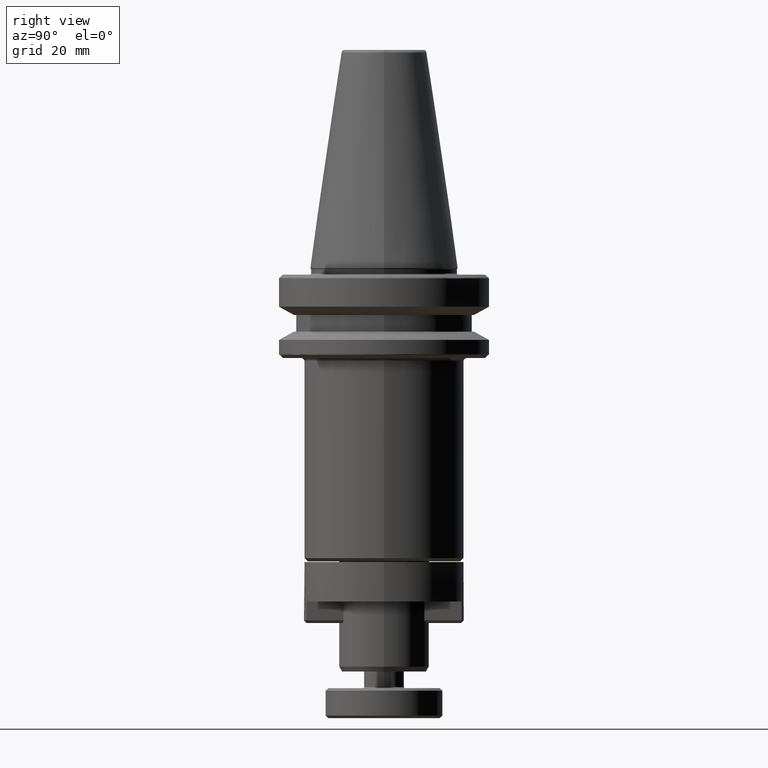
[diagram: clean part render]
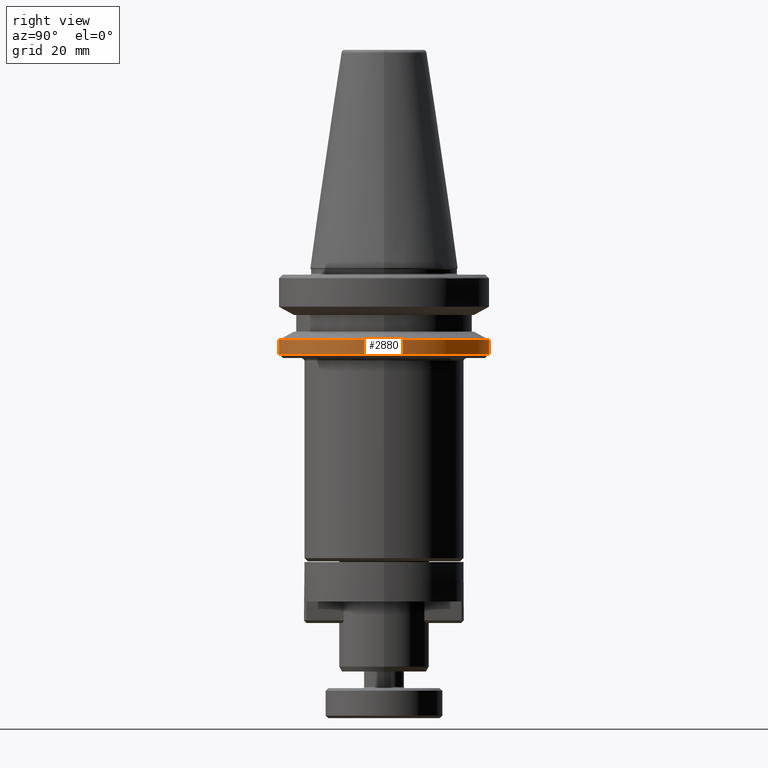
[diagram: same view with one face highlighted and labeled with its STEP entity id]
A machine part, right view. The second image highlights one B-rep face of the part: STEP entity #2880.
In plain terms, the highlighted cylindrical surface (partial cylindrical patch) has radius 31.5 mm, axis along (0, -0, 1).
Its self-contained STEP definition (entity closure, byte-faithful):
#55 = VECTOR ( 'NONE', #3369, 1000.000000000000000 ) ;
#151 = CARTESIAN_POINT ( 'NONE',  ( 31.50000000000000000, 3.857637417314162700E-015, -21.58088804094612800 ) ) ;
#286 = CARTESIAN_POINT ( 'NONE',  ( 3.857637417314162700E-015, 31.50000000000000000, -25.83431457497091800 ) ) ;
#337 = EDGE_CURVE ( 'NONE', #3498, #2575, #1787, .T. ) ;
#401 = ORIENTED_EDGE ( 'NONE', *, *, #1638, .T. ) ;
#716 = DIRECTION ( 'NONE',  ( -0.0000000000000000000, 1.101411730781967500E-016, -1.000000000000000000 ) ) ;
#833 = VECTOR ( 'NONE', #1903, 1000.000000000000000 ) ;
#865 = VERTEX_POINT ( 'NONE', #286 ) ;
#905 = CARTESIAN_POINT ( 'NONE',  ( 0.0000000000000000000, 0.0000000000000000000, -25.83431457500000100 ) ) ;
#1006 = DIRECTION ( 'NONE',  ( 0.0000000000000000000, -1.101411730781967500E-016, -1.000000000000000000 ) ) ;
#1047 = CIRCLE ( 'NONE', #1846, 31.50000000000000000 ) ;
#1150 = VERTEX_POINT ( 'NONE', #151 ) ;
#1160 = AXIS2_PLACEMENT_3D ( 'NONE', #2481, #716, #2786 ) ;
#1244 = EDGE_LOOP ( 'NONE', ( #2437, #3543, #3655, #401, #2476, #2190 ) ) ;
#1294 = DIRECTION ( 'NONE',  ( -0.0000000000000000000, -0.0000000000000000000, -1.000000000000000000 ) ) ;
#1315 = CARTESIAN_POINT ( 'NONE',  ( 3.857637417314162700E-015, 31.50000000000000000, -21.58088804094612800 ) ) ;
#1525 = CARTESIAN_POINT ( 'NONE',  ( 0.0000000000000000000, 0.0000000000000000000, -21.58088804094612800 ) ) ;
#1534 = DIRECTION ( 'NONE',  ( -0.0000000000000000000, -0.0000000000000000000, -1.000000000000000000 ) ) ;
#1540 = CARTESIAN_POINT ( 'NONE',  ( 0.0000000000000000000, -31.50000000000000000, -21.58088804094612800 ) ) ;
#1544 = DIRECTION ( 'NONE',  ( -1.000000000000000000, 0.0000000000000000000, 0.0000000000000000000 ) ) ;
#1617 = DIRECTION ( 'NONE',  ( 0.0000000000000000000, 1.000000000000000000, -1.101411730778291100E-016 ) ) ;
#1638 = EDGE_CURVE ( 'NONE', #1150, #2993, #1645, .T. ) ;
#1645 = CIRCLE ( 'NONE', #2793, 31.50000000000000000 ) ;
#1701 = AXIS2_PLACEMENT_3D ( 'NONE', #905, #3791, #2968 ) ;
#1787 = CIRCLE ( 'NONE', #2695, 31.50000000001813300 ) ;
#1846 = AXIS2_PLACEMENT_3D ( 'NONE', #3069, #1294, #3365 ) ;
#1903 = DIRECTION ( 'NONE',  ( 0.0000000000000000000, -5.507058653894625200E-017, 1.000000000000000000 ) ) ;
#2028 = FACE_OUTER_BOUND ( 'NONE', #1244, .T. ) ;
#2173 = CARTESIAN_POINT ( 'NONE',  ( 0.0000000000000000000, -31.50000000000000000, -25.83431457500000100 ) ) ;
#2190 = ORIENTED_EDGE ( 'NONE', *, *, #337, .F. ) ;
#2406 = EDGE_CURVE ( 'NONE', #3788, #1150, #1047, .T. ) ;
#2437 = ORIENTED_EDGE ( 'NONE', *, *, #3463, .F. ) ;
#2476 = ORIENTED_EDGE ( 'NONE', *, *, #3438, .F. ) ;
#2481 = CARTESIAN_POINT ( 'NONE',  ( 0.0000000000000000000, 0.0000000000000000000, -25.83431457497092200 ) ) ;
#2518 = CARTESIAN_POINT ( 'NONE',  ( 0.0000000000000000000, -31.50000000000000000, -25.83431457497091800 ) ) ;
#2575 = VERTEX_POINT ( 'NONE', #2518 ) ;
#2695 = AXIS2_PLACEMENT_3D ( 'NONE', #3594, #1006, #1617 ) ;
#2756 = LINE ( 'NONE', #2173, #55 ) ;
#2758 = CIRCLE ( 'NONE', #1160, 31.50000000001813300 ) ;
#2786 = DIRECTION ( 'NONE',  ( 0.0000000000000000000, 1.000000000000000000, 1.101411730778291100E-016 ) ) ;
#2793 = AXIS2_PLACEMENT_3D ( 'NONE', #1525, #1534, #1544 ) ;
#2880 = ADVANCED_FACE ( 'NONE', ( #2028 ), #3656, .T. ) ;
#2968 = DIRECTION ( 'NONE',  ( 0.0000000000000000000, -1.000000000000000000, 0.0000000000000000000 ) ) ;
#2993 = VERTEX_POINT ( 'NONE', #1540 ) ;
#3069 = CARTESIAN_POINT ( 'NONE',  ( 0.0000000000000000000, 0.0000000000000000000, -21.58088804094612800 ) ) ;
#3118 = CARTESIAN_POINT ( 'NONE',  ( 31.50000000001359300, -1.414249647752545200E-009, -25.83431457497250200 ) ) ;
#3365 = DIRECTION ( 'NONE',  ( -1.000000000000000000, 0.0000000000000000000, 0.0000000000000000000 ) ) ;
#3369 = DIRECTION ( 'NONE',  ( 0.0000000000000000000, -5.507058653894625200E-017, 1.000000000000000000 ) ) ;
#3438 = EDGE_CURVE ( 'NONE', #2575, #2993, #2756, .T. ) ;
#3463 = EDGE_CURVE ( 'NONE', #865, #3498, #2758, .T. ) ;
#3498 = VERTEX_POINT ( 'NONE', #3118 ) ;
#3543 = ORIENTED_EDGE ( 'NONE', *, *, #3769, .T. ) ;
#3594 = CARTESIAN_POINT ( 'NONE',  ( 0.0000000000000000000, 0.0000000000000000000, -25.83431457497092200 ) ) ;
#3655 = ORIENTED_EDGE ( 'NONE', *, *, #2406, .T. ) ;
#3656 = CYLINDRICAL_SURFACE ( 'NONE', #1701, 31.50000000000000000 ) ;
#3661 = CARTESIAN_POINT ( 'NONE',  ( 3.857637417314162700E-015, 31.50000000000000000, -25.83431457500000100 ) ) ;
#3716 = LINE ( 'NONE', #3661, #833 ) ;
#3769 = EDGE_CURVE ( 'NONE', #865, #3788, #3716, .T. ) ;
#3788 = VERTEX_POINT ( 'NONE', #1315 ) ;
#3791 = DIRECTION ( 'NONE',  ( 0.0000000000000000000, -5.507058653894625200E-017, 1.000000000000000000 ) ) ;